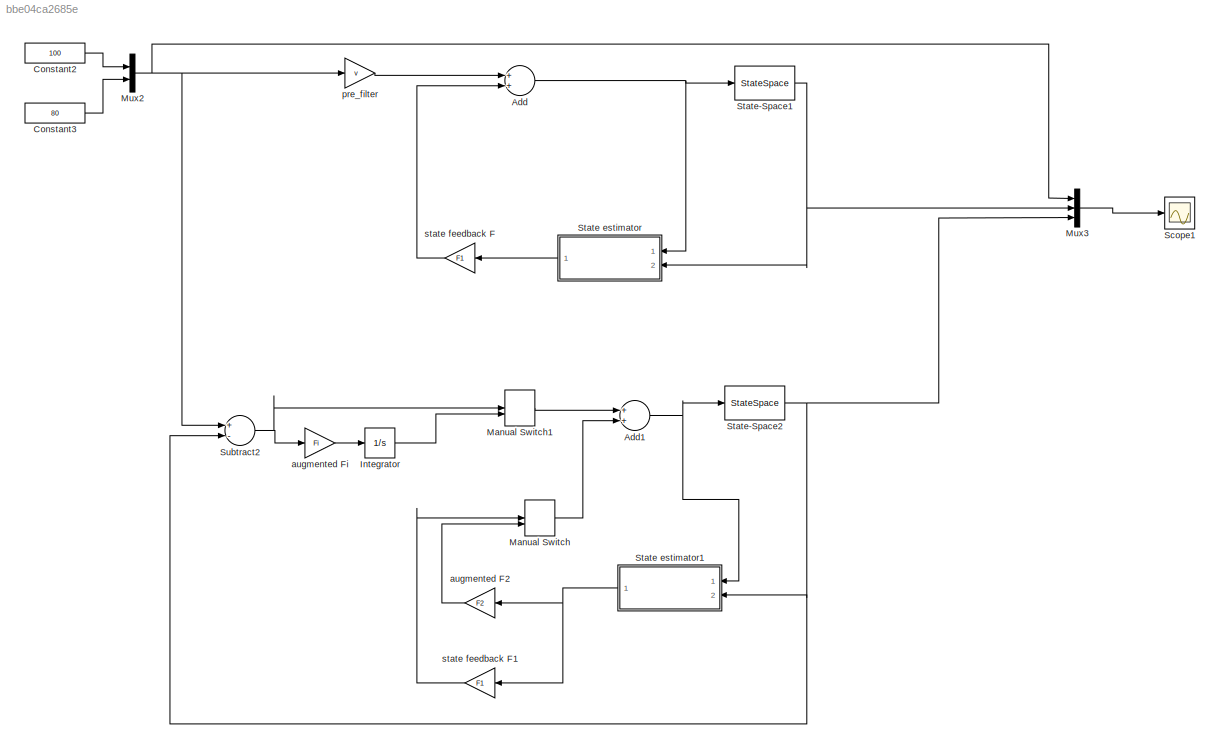
MODEL slx_bbe04ca2685e
KIND model
CONFIG AbsTol = auto
CONFIG EnableMultiTasking = off
CONFIG FixedStep = auto
CONFIG MaxStep = auto
CONFIG MinStep = auto
CONFIG RelTol = 1e-3
CONFIG SampleTimeConstraint = Unconstrained
CONFIG Solver = VariableStepAuto
CONFIG SolverName = VariableStepAuto
CONFIG StartTime = 0.0
CONFIG StopTime = 30
BLOCK [Sum] Add
  InputSameDT = off
  OutDataTypeStr = Inherit: Inherit via internal rule
  Ports = [2, 1]
  SaturateOnIntegerOverflow = off
BLOCK [Sum] Add1
  InputSameDT = off
  OutDataTypeStr = Inherit: Inherit via internal rule
  Ports = [2, 1]
  SaturateOnIntegerOverflow = off
BLOCK [Constant] Constant2
  Value = 100
BLOCK [Constant] Constant3
  Value = 80
BLOCK [Integrator] Integrator
  Ports = [1, 1]
BLOCK [ManualSwitch] Manual Switch
  CurrentSetting = 0
BLOCK [ManualSwitch] Manual Switch1
  CurrentSetting = 0
BLOCK [Mux] Mux2
  DisplayOption = bar
  Inputs = 2
  Ports = [2, 1]
BLOCK [Mux] Mux3
  DisplayOption = bar
  Inputs = 3
  Ports = [3, 1]
BLOCK [Scope] Scope1
  NumInputPorts = 1
  Ports = [1]
  ScopeSpecificationString = Simulink.scopes.TimeScopeBlockCfg('CurrentConfiguration', extmgr.ConfigurationSet(extmgr.Configuration('Core','General UI',true),extmgr.Configuration('Core','Source UI',true),extmgr.Configuration('Sources','WiredSimulink',true,'DataLoggingVariableName','pos','DataLogging',true,'DataLoggingSaveFormat','Array','SampleTime','0.1'),extmgr.Configuration('Visuals','Time Domain',true,'SerializedDisplays'...<+1465ch>
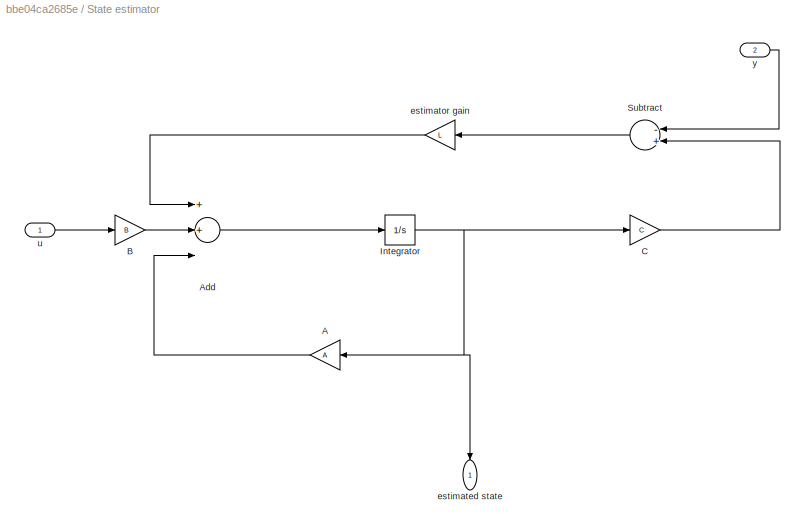
BLOCK [SubSystem] State estimator
  Ports = [2, 1]
  RequestExecContextInheritance = off
  Variant = off
BLOCK [Gain] State estimator/A
  Gain = A
  Multiplication = Matrix(K*u) (u vector)
  OutDataTypeStr = Inherit: Inherit via internal rule
  ParamDataTypeStr = Inherit: Inherit via internal rule
  SaturateOnIntegerOverflow = off
BLOCK [Sum] State estimator/Add
  InputSameDT = off
  Inputs = 3
  OutDataTypeStr = Inherit: Inherit via internal rule
  Ports = [3, 1]
  SaturateOnIntegerOverflow = off
BLOCK [Gain] State estimator/B
  Gain = B
  Multiplication = Matrix(K*u) (u vector)
  OutDataTypeStr = Inherit: Inherit via internal rule
  ParamDataTypeStr = Inherit: Inherit via internal rule
  SaturateOnIntegerOverflow = off
BLOCK [Gain] State estimator/C
  Gain = C
  Multiplication = Matrix(K*u) (u vector)
  OutDataTypeStr = Inherit: Inherit via internal rule
  ParamDataTypeStr = Inherit: Inherit via internal rule
  SaturateOnIntegerOverflow = off
BLOCK [Integrator] State estimator/Integrator
  Ports = [1, 1]
BLOCK [Sum] State estimator/Subtract
  InputSameDT = off
  Inputs = -+
  OutDataTypeStr = Inherit: Inherit via internal rule
  Ports = [2, 1]
  SaturateOnIntegerOverflow = off
BLOCK [Outport] State estimator/estimated state
  IconDisplay = Port number
BLOCK [Gain] State estimator/estimator gain
  Gain = L
  Multiplication = Matrix(K*u) (u vector)
  OutDataTypeStr = Inherit: Inherit via internal rule
  ParamDataTypeStr = Inherit: Inherit via internal rule
  SaturateOnIntegerOverflow = off
BLOCK [Inport] State estimator/u
  IconDisplay = Port number
BLOCK [Inport] State estimator/y
  IconDisplay = Port number
  Port = 2
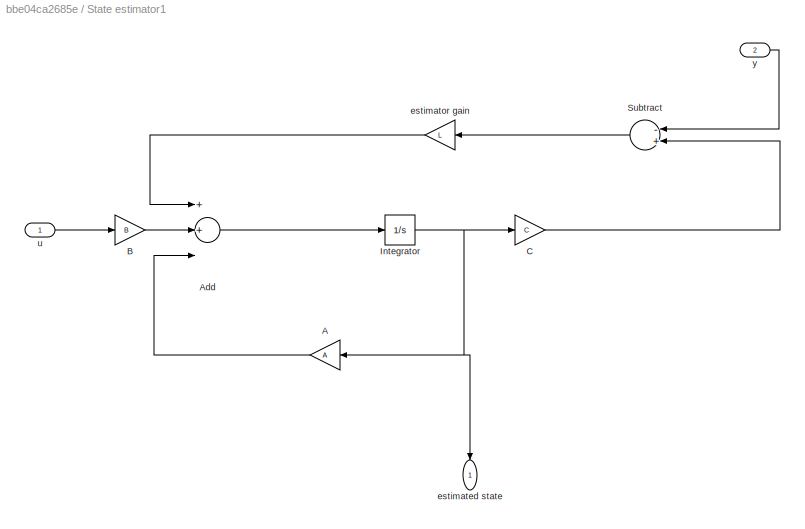
BLOCK [SubSystem] State estimator1
  Ports = [2, 1]
  RequestExecContextInheritance = off
  Variant = off
BLOCK [Gain] State estimator1/A
  Gain = A
  Multiplication = Matrix(K*u) (u vector)
  OutDataTypeStr = Inherit: Inherit via internal rule
  ParamDataTypeStr = Inherit: Inherit via internal rule
  SaturateOnIntegerOverflow = off
BLOCK [Sum] State estimator1/Add
  InputSameDT = off
  Inputs = 3
  OutDataTypeStr = Inherit: Inherit via internal rule
  Ports = [3, 1]
  SaturateOnIntegerOverflow = off
BLOCK [Gain] State estimator1/B
  Gain = B
  Multiplication = Matrix(K*u) (u vector)
  OutDataTypeStr = Inherit: Inherit via internal rule
  ParamDataTypeStr = Inherit: Inherit via internal rule
  SaturateOnIntegerOverflow = off
BLOCK [Gain] State estimator1/C
  Gain = C
  Multiplication = Matrix(K*u) (u vector)
  OutDataTypeStr = Inherit: Inherit via internal rule
  ParamDataTypeStr = Inherit: Inherit via internal rule
  SaturateOnIntegerOverflow = off
BLOCK [Integrator] State estimator1/Integrator
  Ports = [1, 1]
BLOCK [Sum] State estimator1/Subtract
  InputSameDT = off
  Inputs = -+
  OutDataTypeStr = Inherit: Inherit via internal rule
  Ports = [2, 1]
  SaturateOnIntegerOverflow = off
BLOCK [Outport] State estimator1/estimated state
  IconDisplay = Port number
BLOCK [Gain] State estimator1/estimator gain
  Gain = L
  Multiplication = Matrix(K*u) (u vector)
  OutDataTypeStr = Inherit: Inherit via internal rule
  ParamDataTypeStr = Inherit: Inherit via internal rule
  SaturateOnIntegerOverflow = off
BLOCK [Inport] State estimator1/u
  IconDisplay = Port number
BLOCK [Inport] State estimator1/y
  IconDisplay = Port number
  Port = 2
BLOCK [StateSpace] State-Space1
  A = A
  B = B
  C = C
  D = C
  Ports = [1, 1]
  X0 = 0
BLOCK [StateSpace] State-Space2
  A = A
  B = B
  C = C
  D = D
  Ports = [1, 1]
  X0 = 0
BLOCK [Sum] Subtract2
  InputSameDT = off
  Inputs = +-
  OutDataTypeStr = Inherit: Inherit via internal rule
  Ports = [2, 1]
  SaturateOnIntegerOverflow = off
BLOCK [Gain] augmented F2
  Gain = F2
  Multiplication = Matrix(K*u) (u vector)
  OutDataTypeStr = Inherit: Inherit via internal rule
  ParamDataTypeStr = Inherit: Inherit via internal rule
  SaturateOnIntegerOverflow = off
BLOCK [Gain] augmented Fi
  Gain = Fi
  Multiplication = Matrix(K*u) (u vector)
  OutDataTypeStr = Inherit: Inherit via internal rule
  ParamDataTypeStr = Inherit: Inherit via internal rule
  SaturateOnIntegerOverflow = off
BLOCK [Gain] pre_filter
  Gain = v
  Multiplication = Matrix(K*u) (u vector)
  OutDataTypeStr = Inherit: Inherit via internal rule
  ParamDataTypeStr = Inherit: Inherit via internal rule
  SaturateOnIntegerOverflow = off
BLOCK [Gain] state feedback F
  Gain = F1
  Multiplication = Matrix(K*u) (u vector)
  OutDataTypeStr = Inherit: Inherit via internal rule
  ParamDataTypeStr = Inherit: Inherit via internal rule
  SaturateOnIntegerOverflow = off
BLOCK [Gain] state feedback F1
  Gain = F1
  Multiplication = Matrix(K*u) (u vector)
  OutDataTypeStr = Inherit: Inherit via internal rule
  ParamDataTypeStr = Inherit: Inherit via internal rule
  SaturateOnIntegerOverflow = off
NET Add1:1 -> State estimator1:1, State-Space2:1
NET Add:1 -> State estimator:1, State-Space1:1
LINE Constant2:1 -> Mux2:1
LINE Constant3:1 -> Mux2:2
LINE Integrator:1 -> Manual Switch1:2
LINE Manual Switch1:1 -> Add1:1
LINE Manual Switch:1 -> Add1:2
NET Mux2:1 -> Mux3:1, Subtract2:1, pre_filter:1
LINE Mux3:1 -> Scope1:1
LINE State estimator/A:1 -> State estimator/Add:3
LINE State estimator/Add:1 -> State estimator/Integrator:1
LINE State estimator/B:1 -> State estimator/Add:2
LINE State estimator/C:1 -> State estimator/Subtract:2
NET State estimator/Integrator:1 -> State estimator/A:1, State estimator/C:1, State estimator/estimated state:1
LINE State estimator/Subtract:1 -> State estimator/estimator gain:1
LINE State estimator/estimator gain:1 -> State estimator/Add:1
LINE State estimator/u:1 -> State estimator/B:1
LINE State estimator/y:1 -> State estimator/Subtract:1
LINE State estimator1/A:1 -> State estimator1/Add:3
LINE State estimator1/Add:1 -> State estimator1/Integrator:1
LINE State estimator1/B:1 -> State estimator1/Add:2
LINE State estimator1/C:1 -> State estimator1/Subtract:2
NET State estimator1/Integrator:1 -> State estimator1/A:1, State estimator1/C:1, State estimator1/estimated state:1
LINE State estimator1/Subtract:1 -> State estimator1/estimator gain:1
LINE State estimator1/estimator gain:1 -> State estimator1/Add:1
LINE State estimator1/u:1 -> State estimator1/B:1
LINE State estimator1/y:1 -> State estimator1/Subtract:1
NET State estimator1:1 -> augmented F2:1, state feedback F1:1
LINE State estimator:1 -> state feedback F:1
NET State-Space1:1 -> Mux3:2, State estimator:2
NET State-Space2:1 -> Mux3:3, State estimator1:2, Subtract2:2
NET Subtract2:1 -> Manual Switch1:1, augmented Fi:1
LINE augmented F2:1 -> Manual Switch:2
LINE augmented Fi:1 -> Integrator:1
LINE pre_filter:1 -> Add:1
LINE state feedback F1:1 -> Manual Switch:1
LINE state feedback F:1 -> Add:2
note: NET lines group one-source signal fan-out (src -> all destinations, sorted); 1:1 wires keep LINE
